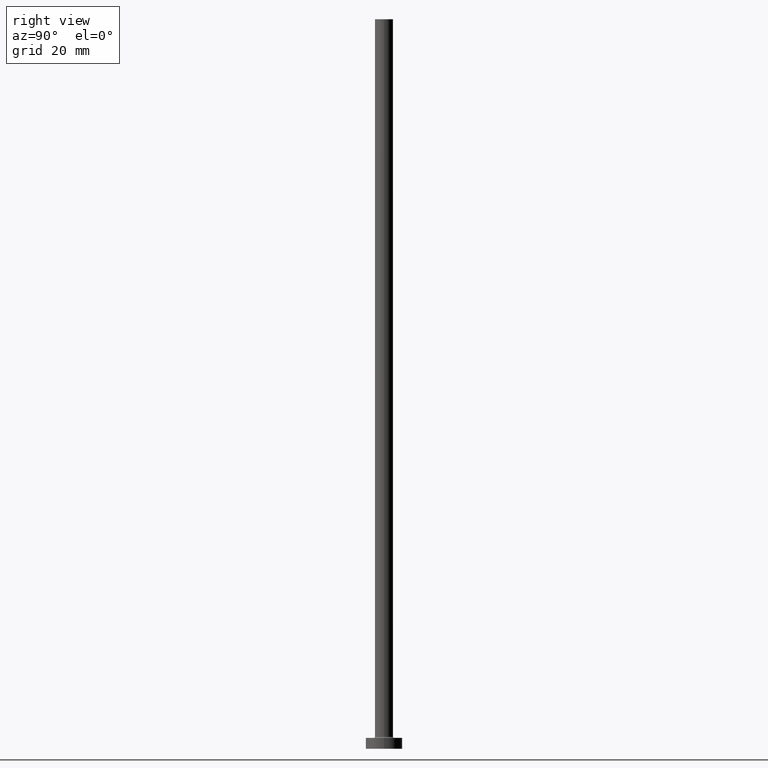
[diagram: clean part render]
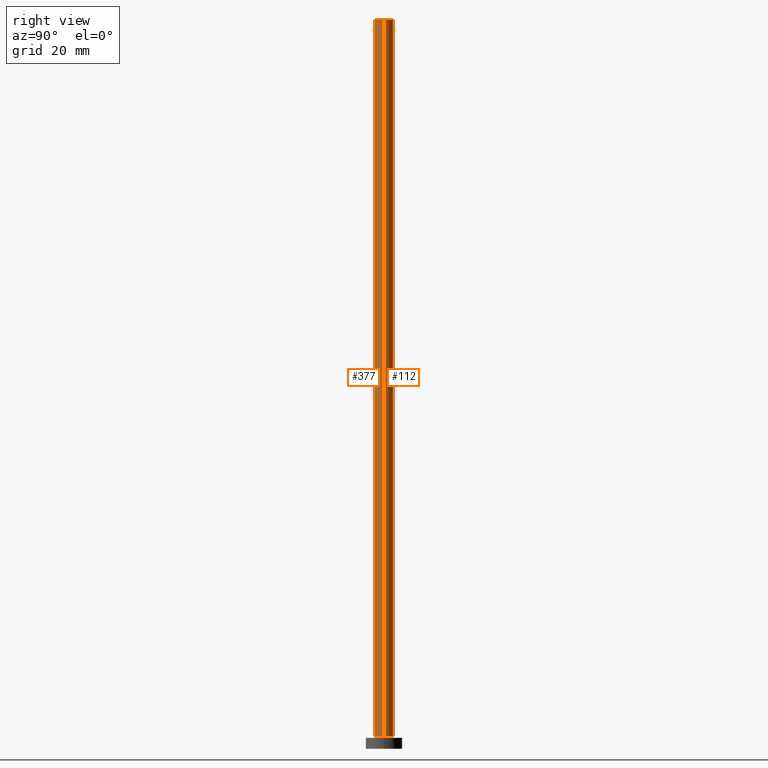
[diagram: same view with one multi-face feature highlighted, each face labeled with its STEP entity id]
A machine part, right view. The highlighted faces form ONE feature: a constant-radius fillet chain: 2 tangent blend faces with common blend radius 2.5 mm. The faces share edges in the B-rep.
Their STEP definitions:
[1] entity #377 (Cylinder):
#18 = DIRECTION ( 'NONE',  ( 0.000000000000000000, 0.000000000000000000, 1.000000000000000000 ) ) ;
#20 = CARTESIAN_POINT ( 'NONE',  ( -2.500000000000000000, 0.000000000000000000, 200.0000000000000000 ) ) ;
#49 = DIRECTION ( 'NONE',  ( -0.000000000000000000, -0.000000000000000000, -1.000000000000000000 ) ) ;
#52 = DIRECTION ( 'NONE',  ( 0.000000000000000000, 0.000000000000000000, 1.000000000000000000 ) ) ;
#53 = DIRECTION ( 'NONE',  ( 1.000000000000000000, 0.000000000000000000, 0.000000000000000000 ) ) ;
#57 = CARTESIAN_POINT ( 'NONE',  ( 2.500000000000000000, 3.061616997868383141E-16, 200.0000000000000000 ) ) ;
#64 = VECTOR ( 'NONE', #265, 1000.000000000000000 ) ;
#79 = CARTESIAN_POINT ( 'NONE',  ( -2.500000000000000000, 0.000000000000000000, 200.0000000000000000 ) ) ;
#90 = DIRECTION ( 'NONE',  ( -0.000000000000000000, -0.000000000000000000, -1.000000000000000000 ) ) ;
#104 = AXIS2_PLACEMENT_3D ( 'NONE', #269, #90, #308 ) ;
#106 = CIRCLE ( 'NONE', #139, 2.500000000000000000 ) ;
#107 = ORIENTED_EDGE ( 'NONE', *, *, #389, .F. ) ;
#119 = CYLINDRICAL_SURFACE ( 'NONE', #104, 2.500000000000000000 ) ;
#139 = AXIS2_PLACEMENT_3D ( 'NONE', #374, #18, #53 ) ;
#164 = LINE ( 'NONE', #57, #64 ) ;
#166 = CIRCLE ( 'NONE', #199, 2.500000000000000000 ) ;
#194 = ORIENTED_EDGE ( 'NONE', *, *, #431, .T. ) ;
#196 = CARTESIAN_POINT ( 'NONE',  ( 2.500000000000000000, 3.061616997868383141E-16, 3.299999999999997158 ) ) ;
#199 = AXIS2_PLACEMENT_3D ( 'NONE', #241, #52, #414 ) ;
#210 = VERTEX_POINT ( 'NONE', #196 ) ;
#229 = LINE ( 'NONE', #20, #295 ) ;
#233 = FACE_OUTER_BOUND ( 'NONE', #286, .T. ) ;
#239 = EDGE_CURVE ( 'NONE', #268, #397, #106, .T. ) ;
#241 = CARTESIAN_POINT ( 'NONE',  ( 0.000000000000000000, 0.000000000000000000, 3.299999999999997158 ) ) ;
#265 = DIRECTION ( 'NONE',  ( -0.000000000000000000, -0.000000000000000000, -1.000000000000000000 ) ) ;
#268 = VERTEX_POINT ( 'NONE', #79 ) ;
#269 = CARTESIAN_POINT ( 'NONE',  ( 0.000000000000000000, 0.000000000000000000, 200.0000000000000000 ) ) ;
#286 = EDGE_LOOP ( 'NONE', ( #107, #372, #194, #413 ) ) ;
#295 = VECTOR ( 'NONE', #49, 1000.000000000000000 ) ;
#298 = CARTESIAN_POINT ( 'NONE',  ( 2.500000000000000000, 3.061616997868383141E-16, 200.0000000000000000 ) ) ;
#308 = DIRECTION ( 'NONE',  ( -1.000000000000000000, 0.000000000000000000, 0.000000000000000000 ) ) ;
#365 = EDGE_CURVE ( 'NONE', #375, #210, #166, .T. ) ;
#372 = ORIENTED_EDGE ( 'NONE', *, *, #239, .F. ) ;
#374 = CARTESIAN_POINT ( 'NONE',  ( 0.000000000000000000, 0.000000000000000000, 200.0000000000000000 ) ) ;
#375 = VERTEX_POINT ( 'NONE', #416 ) ;
#377 = ADVANCED_FACE ( 'NONE', ( #233 ), #119, .T. ) ;
#389 = EDGE_CURVE ( 'NONE', #397, #210, #164, .T. ) ;
#397 = VERTEX_POINT ( 'NONE', #298 ) ;
#413 = ORIENTED_EDGE ( 'NONE', *, *, #365, .T. ) ;
#414 = DIRECTION ( 'NONE',  ( 1.000000000000000000, 0.000000000000000000, 0.000000000000000000 ) ) ;
#416 = CARTESIAN_POINT ( 'NONE',  ( -2.500000000000000000, 0.000000000000000000, 3.299999999999997158 ) ) ;
#431 = EDGE_CURVE ( 'NONE', #268, #375, #229, .T. ) ;
[2] entity #112 (Cylinder):
#20 = CARTESIAN_POINT ( 'NONE',  ( -2.500000000000000000, 0.000000000000000000, 200.0000000000000000 ) ) ;
#38 = CARTESIAN_POINT ( 'NONE',  ( 0.000000000000000000, 0.000000000000000000, 200.0000000000000000 ) ) ;
#40 = AXIS2_PLACEMENT_3D ( 'NONE', #38, #178, #220 ) ;
#49 = DIRECTION ( 'NONE',  ( -0.000000000000000000, -0.000000000000000000, -1.000000000000000000 ) ) ;
#57 = CARTESIAN_POINT ( 'NONE',  ( 2.500000000000000000, 3.061616997868383141E-16, 200.0000000000000000 ) ) ;
#64 = VECTOR ( 'NONE', #265, 1000.000000000000000 ) ;
#79 = CARTESIAN_POINT ( 'NONE',  ( -2.500000000000000000, 0.000000000000000000, 200.0000000000000000 ) ) ;
#82 = CARTESIAN_POINT ( 'NONE',  ( 0.000000000000000000, 0.000000000000000000, 200.0000000000000000 ) ) ;
#89 = ORIENTED_EDGE ( 'NONE', *, *, #447, .T. ) ;
#112 = ADVANCED_FACE ( 'NONE', ( #283 ), #349, .T. ) ;
#130 = AXIS2_PLACEMENT_3D ( 'NONE', #334, #441, #449 ) ;
#143 = ORIENTED_EDGE ( 'NONE', *, *, #314, .F. ) ;
#164 = LINE ( 'NONE', #57, #64 ) ;
#178 = DIRECTION ( 'NONE',  ( -0.000000000000000000, -0.000000000000000000, -1.000000000000000000 ) ) ;
#189 = CIRCLE ( 'NONE', #130, 2.500000000000000000 ) ;
#196 = CARTESIAN_POINT ( 'NONE',  ( 2.500000000000000000, 3.061616997868383141E-16, 3.299999999999997158 ) ) ;
#210 = VERTEX_POINT ( 'NONE', #196 ) ;
#220 = DIRECTION ( 'NONE',  ( -1.000000000000000000, 0.000000000000000000, 0.000000000000000000 ) ) ;
#229 = LINE ( 'NONE', #20, #295 ) ;
#231 = DIRECTION ( 'NONE',  ( 0.000000000000000000, 0.000000000000000000, 1.000000000000000000 ) ) ;
#265 = DIRECTION ( 'NONE',  ( -0.000000000000000000, -0.000000000000000000, -1.000000000000000000 ) ) ;
#268 = VERTEX_POINT ( 'NONE', #79 ) ;
#283 = FACE_OUTER_BOUND ( 'NONE', #330, .T. ) ;
#295 = VECTOR ( 'NONE', #49, 1000.000000000000000 ) ;
#298 = CARTESIAN_POINT ( 'NONE',  ( 2.500000000000000000, 3.061616997868383141E-16, 200.0000000000000000 ) ) ;
#300 = ORIENTED_EDGE ( 'NONE', *, *, #389, .T. ) ;
#314 = EDGE_CURVE ( 'NONE', #397, #268, #403, .T. ) ;
#330 = EDGE_LOOP ( 'NONE', ( #143, #300, #89, #435 ) ) ;
#334 = CARTESIAN_POINT ( 'NONE',  ( 0.000000000000000000, 0.000000000000000000, 3.299999999999997158 ) ) ;
#349 = CYLINDRICAL_SURFACE ( 'NONE', #40, 2.500000000000000000 ) ;
#359 = AXIS2_PLACEMENT_3D ( 'NONE', #82, #231, #371 ) ;
#371 = DIRECTION ( 'NONE',  ( 1.000000000000000000, 0.000000000000000000, 0.000000000000000000 ) ) ;
#375 = VERTEX_POINT ( 'NONE', #416 ) ;
#389 = EDGE_CURVE ( 'NONE', #397, #210, #164, .T. ) ;
#397 = VERTEX_POINT ( 'NONE', #298 ) ;
#403 = CIRCLE ( 'NONE', #359, 2.500000000000000000 ) ;
#416 = CARTESIAN_POINT ( 'NONE',  ( -2.500000000000000000, 0.000000000000000000, 3.299999999999997158 ) ) ;
#431 = EDGE_CURVE ( 'NONE', #268, #375, #229, .T. ) ;
#435 = ORIENTED_EDGE ( 'NONE', *, *, #431, .F. ) ;
#441 = DIRECTION ( 'NONE',  ( 0.000000000000000000, 0.000000000000000000, 1.000000000000000000 ) ) ;
#447 = EDGE_CURVE ( 'NONE', #210, #375, #189, .T. ) ;
#449 = DIRECTION ( 'NONE',  ( 1.000000000000000000, 0.000000000000000000, 0.000000000000000000 ) ) ;